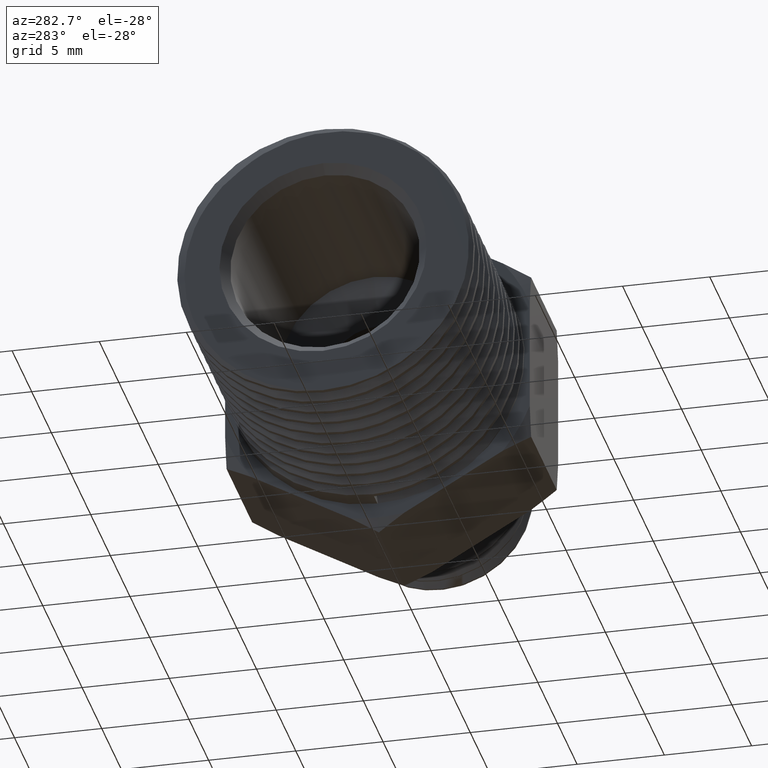
[diagram: clean part render]
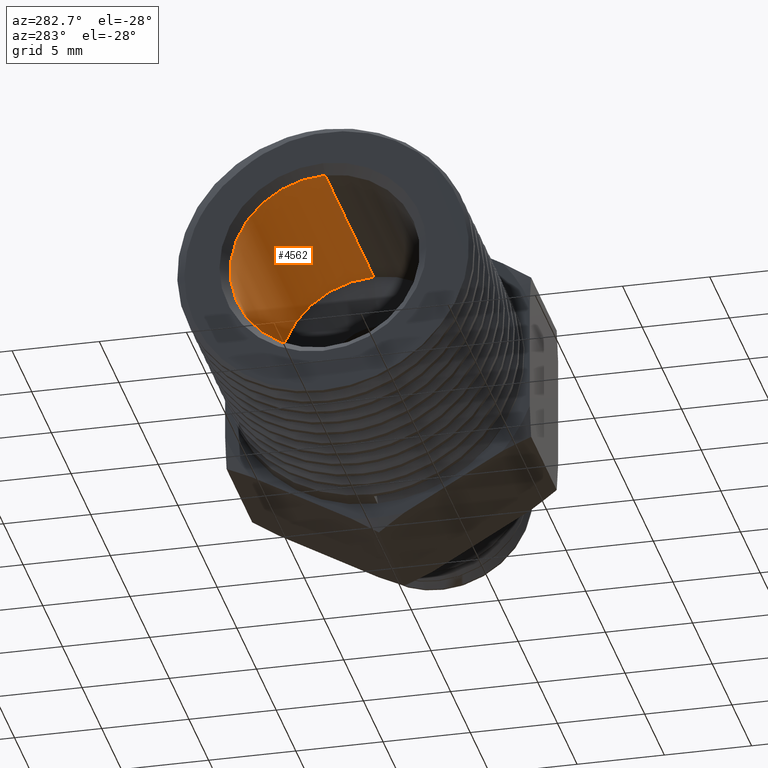
[diagram: same view with one face highlighted and labeled with its STEP entity id]
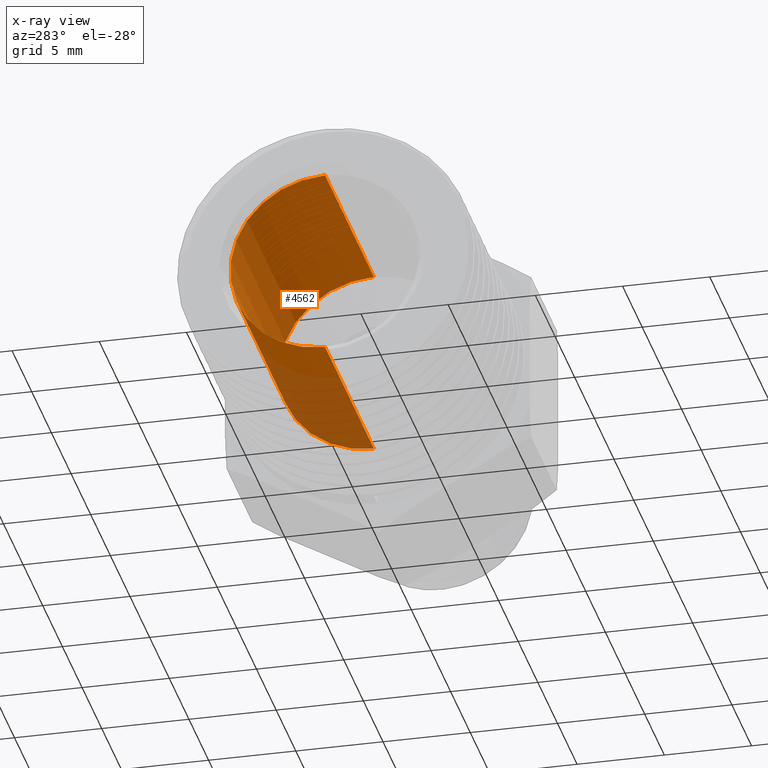
[diagram: x-ray of the same camera — body ghosted, the highlighted face saturated]
A machine part, auxiliary view. The second image highlights one B-rep face of the part: STEP entity #4562.
The next image is the same camera in x-ray: the body ghosted, the highlighted face saturated — about 23% of this face is hidden behind the body in this view.
In plain terms, the highlighted cylindrical surface (partial cylindrical patch) has radius 5.4356 mm, axis along (-1, -0, -0).
Its self-contained STEP definition (entity closure, byte-faithful):
#13 = CARTESIAN_POINT ( 'NONE',  ( -0.1783970234266206200, 0.0000000000000000000, 0.0000000000000000000 ) ) ;
#163 = CARTESIAN_POINT ( 'NONE',  ( 0.4632834046956847400, 2.620744150175335300E-017, -0.2140000000000000000 ) ) ;
#359 = CARTESIAN_POINT ( 'NONE',  ( -0.6669999999999993700, 0.0000000000000000000, 0.0000000000000000000 ) ) ;
#458 = VECTOR ( 'NONE', #2895, 39.37007874015748100 ) ;
#470 = DIRECTION ( 'NONE',  ( 0.0000000000000000000, 0.0000000000000000000, -1.000000000000000000 ) ) ;
#508 = LINE ( 'NONE', #163, #458 ) ;
#623 = ORIENTED_EDGE ( 'NONE', *, *, #2474, .F. ) ;
#629 = CARTESIAN_POINT ( 'NONE',  ( -0.1783970234266206200, 0.0000000000000000000, 0.2140000000000000000 ) ) ;
#824 = DIRECTION ( 'NONE',  ( 0.0000000000000000000, 0.0000000000000000000, 1.000000000000000000 ) ) ;
#1062 = EDGE_CURVE ( 'NONE', #2351, #2737, #1103, .T. ) ;
#1103 = CIRCLE ( 'NONE', #1617, 0.2140000000000000000 ) ;
#1165 = CYLINDRICAL_SURFACE ( 'NONE', #3784, 0.2140000000000000000 ) ;
#1309 = FACE_OUTER_BOUND ( 'NONE', #1950, .T. ) ;
#1579 = ORIENTED_EDGE ( 'NONE', *, *, #1062, .T. ) ;
#1617 = AXIS2_PLACEMENT_3D ( 'NONE', #13, #3212, #470 ) ;
#1720 = LINE ( 'NONE', #1728, #1938 ) ;
#1728 = CARTESIAN_POINT ( 'NONE',  ( 0.4632834046956847400, 0.0000000000000000000, 0.2140000000000000000 ) ) ;
#1938 = VECTOR ( 'NONE', #3595, 39.37007874015748100 ) ;
#1950 = EDGE_LOOP ( 'NONE', ( #623, #1579, #4986, #2985 ) ) ;
#2143 = CARTESIAN_POINT ( 'NONE',  ( 0.4632834046956847400, 0.0000000000000000000, 0.0000000000000000000 ) ) ;
#2351 = VERTEX_POINT ( 'NONE', #3619 ) ;
#2474 = EDGE_CURVE ( 'NONE', #2351, #2581, #508, .T. ) ;
#2534 = CARTESIAN_POINT ( 'NONE',  ( -0.6669999999999993700, 0.0000000000000000000, 0.2140000000000000000 ) ) ;
#2581 = VERTEX_POINT ( 'NONE', #3402 ) ;
#2643 = VERTEX_POINT ( 'NONE', #2534 ) ;
#2737 = VERTEX_POINT ( 'NONE', #629 ) ;
#2895 = DIRECTION ( 'NONE',  ( -1.000000000000000000, -0.0000000000000000000, -0.0000000000000000000 ) ) ;
#2985 = ORIENTED_EDGE ( 'NONE', *, *, #4692, .T. ) ;
#3165 = AXIS2_PLACEMENT_3D ( 'NONE', #359, #3572, #824 ) ;
#3212 = DIRECTION ( 'NONE',  ( 1.000000000000000000, -0.0000000000000000000, -0.0000000000000000000 ) ) ;
#3402 = CARTESIAN_POINT ( 'NONE',  ( -0.6669999999999993700, 2.620744150175335300E-017, -0.2140000000000000000 ) ) ;
#3572 = DIRECTION ( 'NONE',  ( -1.000000000000000000, 0.0000000000000000000, 0.0000000000000000000 ) ) ;
#3595 = DIRECTION ( 'NONE',  ( -1.000000000000000000, -0.0000000000000000000, -0.0000000000000000000 ) ) ;
#3619 = CARTESIAN_POINT ( 'NONE',  ( -0.1783970234266206200, 2.620744150175335300E-017, -0.2140000000000000000 ) ) ;
#3784 = AXIS2_PLACEMENT_3D ( 'NONE', #2143, #4400, #4825 ) ;
#4006 = EDGE_CURVE ( 'NONE', #2737, #2643, #1720, .T. ) ;
#4400 = DIRECTION ( 'NONE',  ( -1.000000000000000000, -0.0000000000000000000, -0.0000000000000000000 ) ) ;
#4503 = CIRCLE ( 'NONE', #3165, 0.2140000000000000000 ) ;
#4562 = ADVANCED_FACE ( 'NONE', ( #1309 ), #1165, .F. ) ;
#4692 = EDGE_CURVE ( 'NONE', #2643, #2581, #4503, .T. ) ;
#4825 = DIRECTION ( 'NONE',  ( 0.0000000000000000000, 0.0000000000000000000, 1.000000000000000000 ) ) ;
#4986 = ORIENTED_EDGE ( 'NONE', *, *, #4006, .T. ) ;